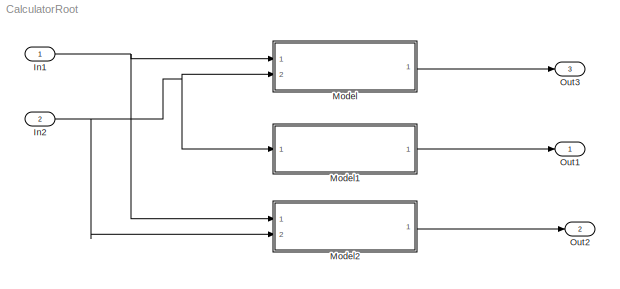
MODEL CalculatorRoot
KIND model
CONFIG PreLoadFcn = addpath ('../ProcAbs');\naddpath ('../ProcAdd');\naddpath ('../Divide');\naddpath('../Utilities');\naddpath('./scripts');\naddpath ('../../../parameters');\n\n
BLOCK [Inport] In1
  IconDisplay = Port number
  SID = 1
BLOCK [Inport] In2
  IconDisplay = Port number
  Port = 2
  SID = 10
BLOCK [ModelReference] Model
  ModelNameDialog = CalcAdd
  ModelReferenceVersion = 1.5
  Ports = [2, 1]
  SID = 3
  Variant = off
BLOCK [ModelReference] Model1
  ModelNameDialog = CalcAbs
  ModelReferenceVersion = 1.4
  Ports = [1, 1]
  SID = 21
  Variant = off
BLOCK [ModelReference] Model2
  ModelNameDialog = CalcDivide
  ModelReferenceVersion = 1.4
  Ports = [2, 1]
  SID = 22
  Variant = off
BLOCK [Outport] Out1
  IconDisplay = Port number
  SID = 23
BLOCK [Outport] Out2
  IconDisplay = Port number
  Port = 2
  SID = 24
BLOCK [Outport] Out3
  IconDisplay = Port number
  Port = 3
  SID = 25
NET In1:1 -> Model2:1, Model:1
NET In2:1 -> Model1:1, Model2:2, Model:2
LINE Model1:1 -> Out1:1
LINE Model2:1 -> Out2:1
LINE Model:1 -> Out3:1
note: NET lines group one-source signal fan-out (src -> all destinations, sorted); 1:1 wires keep LINE
